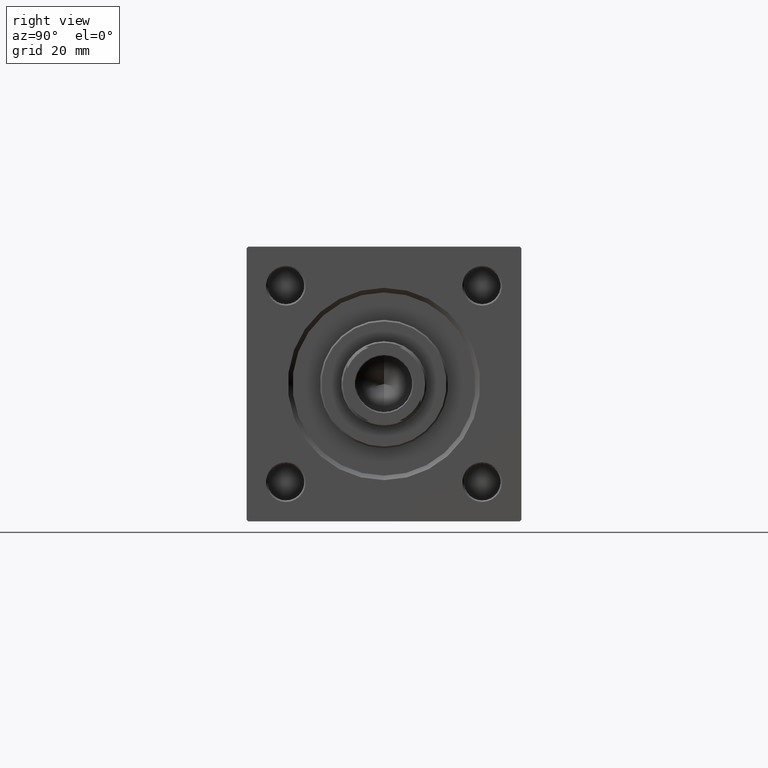
[diagram: clean part render]
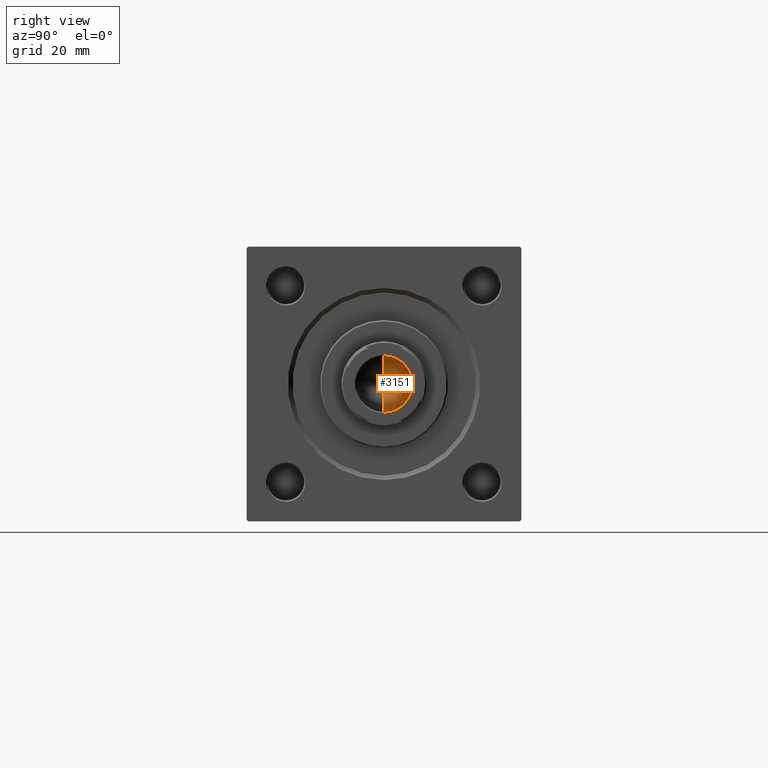
[diagram: same view with one face highlighted and labeled with its STEP entity id]
A machine part, right view. The second image highlights one B-rep face of the part: STEP entity #3151.
In plain terms, the highlighted conical surface has half-angle 59 deg.
Its self-contained STEP definition (entity closure, byte-faithful):
#851 = ORIENTED_EDGE ( 'NONE', *, *, #47852, .T. ) ;
#3151 = ADVANCED_FACE ( 'NONE', ( #30133 ), #9900, .F. ) ;
#4771 = ORIENTED_EDGE ( 'NONE', *, *, #23143, .F. ) ;
#4922 = LINE ( 'NONE', #7975, #31705 ) ;
#7975 = CARTESIAN_POINT ( 'NONE',  ( -9.249999999999994671, 1.132798289211300909E-15, 114.9999999999999858 ) ) ;
#9900 = CONICAL_SURFACE ( 'NONE', #30151, 9.249999999999994671, 1.029744258676653423 ) ;
#13919 = VECTOR ( 'NONE', #17085, 1000.000000000000000 ) ;
#17085 = DIRECTION ( 'NONE',  ( 0.8571673007021117785, 0.000000000000000000, 0.5150380749100550437 ) ) ;
#18823 = DIRECTION ( 'NONE',  ( 1.000000000000000000, 0.000000000000000000, 0.000000000000000000 ) ) ;
#19447 = VERTEX_POINT ( 'NONE', #28368 ) ;
#20410 = CARTESIAN_POINT ( 'NONE',  ( 9.249999999999994671, 0.000000000000000000, 114.9999999999999858 ) ) ;
#22390 = CARTESIAN_POINT ( 'NONE',  ( 0.000000000000000000, 0.000000000000000000, 114.9999999999999858 ) ) ;
#22536 = DIRECTION ( 'NONE',  ( -0.000000000000000000, -0.000000000000000000, 1.000000000000000000 ) ) ;
#23143 = EDGE_CURVE ( 'NONE', #19447, #36229, #28523, .T. ) ;
#26595 = DIRECTION ( 'NONE',  ( 1.000000000000000000, 0.000000000000000000, 0.000000000000000000 ) ) ;
#28260 = DIRECTION ( 'NONE',  ( -0.8571673007021117785, 1.049727191138617956E-16, 0.5150380749100550437 ) ) ;
#28368 = CARTESIAN_POINT ( 'NONE',  ( -1.063698371622866236E-14, 0.000000000000000000, 109.4420392739950501 ) ) ;
#28523 = LINE ( 'NONE', #20410, #13919 ) ;
#29295 = CARTESIAN_POINT ( 'NONE',  ( 9.249999999999994671, 0.000000000000000000, 114.9999999999999858 ) ) ;
#30133 = FACE_OUTER_BOUND ( 'NONE', #48956, .T. ) ;
#30151 = AXIS2_PLACEMENT_3D ( 'NONE', #46418, #22536, #26595 ) ;
#31705 = VECTOR ( 'NONE', #28260, 1000.000000000000000 ) ;
#34892 = AXIS2_PLACEMENT_3D ( 'NONE', #22390, #49564, #18823 ) ;
#36229 = VERTEX_POINT ( 'NONE', #29295 ) ;
#39069 = VERTEX_POINT ( 'NONE', #44635 ) ;
#44635 = CARTESIAN_POINT ( 'NONE',  ( -9.249999999999994671, 1.132798289211300909E-15, 114.9999999999999858 ) ) ;
#45274 = ORIENTED_EDGE ( 'NONE', *, *, #46726, .T. ) ;
#46418 = CARTESIAN_POINT ( 'NONE',  ( 0.000000000000000000, 0.000000000000000000, 114.9999999999999858 ) ) ;
#46726 = EDGE_CURVE ( 'NONE', #39069, #36229, #47881, .T. ) ;
#47852 = EDGE_CURVE ( 'NONE', #19447, #39069, #4922, .T. ) ;
#47881 = CIRCLE ( 'NONE', #34892, 9.249999999999994671 ) ;
#48956 = EDGE_LOOP ( 'NONE', ( #4771, #851, #45274 ) ) ;
#49564 = DIRECTION ( 'NONE',  ( -0.000000000000000000, -0.000000000000000000, 1.000000000000000000 ) ) ;